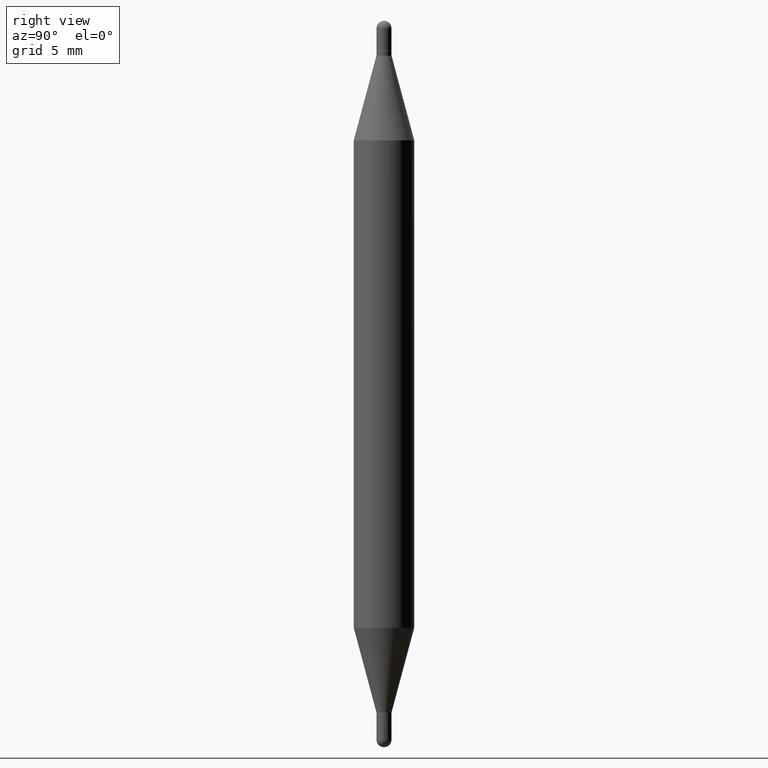
[diagram: clean part render]
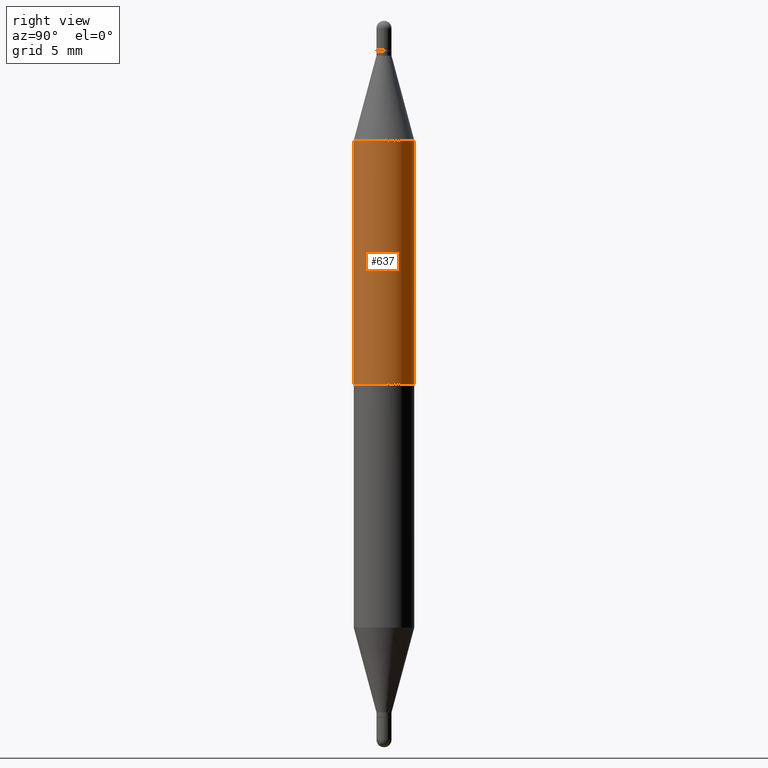
[diagram: same view with one face highlighted and labeled with its STEP entity id]
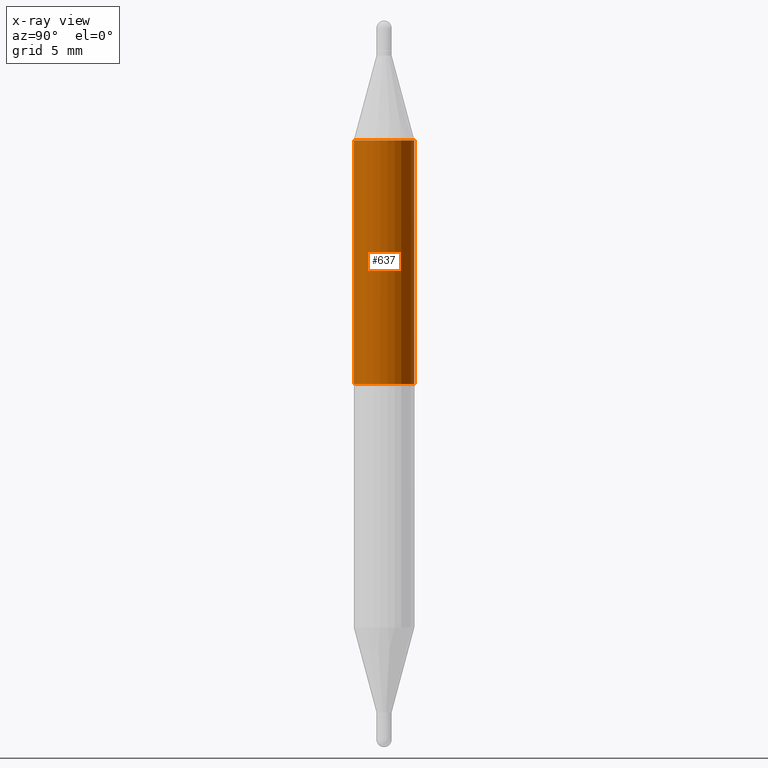
[diagram: x-ray of the same camera — body ghosted, the highlighted face saturated]
A machine part, right view. The second image highlights one B-rep face of the part: STEP entity #637.
The next image is the same camera in x-ray: the body ghosted, the highlighted face saturated — about 0% of this face is hidden behind the body in this view.
In plain terms, the highlighted cylindrical surface (edge-blend (fillet) strip) has radius 1.5875 mm, axis along (-0, -0, -1).
Its self-contained STEP definition (entity closure, byte-faithful):
#39 = DIRECTION ( 'NONE',  ( -2.448446106568060842E-29, -3.483878130583589894E-15, -1.000000000000000000 ) ) ;
#94 = CARTESIAN_POINT ( 'NONE',  ( -4.364351673553608545E-16, -0.06250000000000084655, -0.2470331828749792180 ) ) ;
#97 = EDGE_CURVE ( 'NONE', #601, #679, #764, .T. ) ;
#99 = VECTOR ( 'NONE', #39, 39.37007874015748143 ) ;
#113 = CYLINDRICAL_SURFACE ( 'NONE', #423, 0.06250000000000000000 ) ;
#198 = FACE_OUTER_BOUND ( 'NONE', #842, .T. ) ;
#247 = AXIS2_PLACEMENT_3D ( 'NONE', #388, #633, #481 ) ;
#290 = LINE ( 'NONE', #1048, #99 ) ;
#388 = CARTESIAN_POINT ( 'NONE',  ( 3.067821725048732845E-29, -8.631381618369439646E-16, -0.2470331828749794401 ) ) ;
#423 = AXIS2_PLACEMENT_3D ( 'NONE', #452, #797, #887 ) ;
#452 = CARTESIAN_POINT ( 'NONE',  ( 0.000000000000000000, -5.228321854365732350E-15, -1.500000000000000444 ) ) ;
#481 = DIRECTION ( 'NONE',  ( -6.982962677686265922E-15, -1.000000000000000000, 3.278217592397116257E-15 ) ) ;
#505 = VERTEX_POINT ( 'NONE', #94 ) ;
#548 = ORIENTED_EDGE ( 'NONE', *, *, #778, .F. ) ;
#554 = CARTESIAN_POINT ( 'NONE',  ( 4.287811248607512910E-16, 0.06249999999999911876, -0.2470331828749796621 ) ) ;
#564 = LINE ( 'NONE', #991, #1098 ) ;
#580 = EDGE_CURVE ( 'NONE', #862, #601, #564, .T. ) ;
#601 = VERTEX_POINT ( 'NONE', #634 ) ;
#633 = DIRECTION ( 'NONE',  ( 2.448446106568060842E-29, 3.483878130583589894E-15, 1.000000000000000000 ) ) ;
#634 = CARTESIAN_POINT ( 'NONE',  ( 4.287811248607452266E-16, 0.06249999999999738404, -0.7500000000000004441 ) ) ;
#637 = ADVANCED_FACE ( 'NONE', ( #198 ), #113, .T. ) ;
#639 = DIRECTION ( 'NONE',  ( -2.448446106568060842E-29, -3.483878130583589894E-15, -1.000000000000000000 ) ) ;
#678 = ORIENTED_EDGE ( 'NONE', *, *, #97, .F. ) ;
#679 = VERTEX_POINT ( 'NONE', #813 ) ;
#732 = CIRCLE ( 'NONE', #247, 0.06249999999999999306 ) ;
#764 = CIRCLE ( 'NONE', #967, 0.06250000000000000000 ) ;
#778 = EDGE_CURVE ( 'NONE', #505, #862, #732, .T. ) ;
#797 = DIRECTION ( 'NONE',  ( -2.448446106568060842E-29, -3.483878130583589894E-15, -1.000000000000000000 ) ) ;
#813 = CARTESIAN_POINT ( 'NONE',  ( -4.364351673553731805E-16, -0.06250000000000260902, -0.7499999999999998890 ) ) ;
#842 = EDGE_LOOP ( 'NONE', ( #1030, #548, #953, #678 ) ) ;
#862 = VERTEX_POINT ( 'NONE', #554 ) ;
#887 = DIRECTION ( 'NONE',  ( -6.982962677686265922E-15, -1.000000000000000000, 4.370956789862821150E-15 ) ) ;
#901 = DIRECTION ( 'NONE',  ( 0.000000000000000000, 1.000000000000000000, -4.370956789862821150E-15 ) ) ;
#906 = DIRECTION ( 'NONE',  ( -0.000000000000000000, -3.485547902910486918E-15, -1.000000000000000000 ) ) ;
#953 = ORIENTED_EDGE ( 'NONE', *, *, #965, .T. ) ;
#965 = EDGE_CURVE ( 'NONE', #505, #679, #290, .T. ) ;
#967 = AXIS2_PLACEMENT_3D ( 'NONE', #995, #906, #901 ) ;
#991 = CARTESIAN_POINT ( 'NONE',  ( 4.287811248607206733E-16, 0.06249999999999477501, -1.500000000000000666 ) ) ;
#995 = CARTESIAN_POINT ( 'NONE',  ( 1.836334579926045982E-29, -2.615413256428038450E-15, -0.7500000000000002220 ) ) ;
#1030 = ORIENTED_EDGE ( 'NONE', *, *, #580, .F. ) ;
#1048 = CARTESIAN_POINT ( 'NONE',  ( -4.364351673553916201E-16, -0.06250000000000521805, -1.500000000000000222 ) ) ;
#1098 = VECTOR ( 'NONE', #639, 39.37007874015748143 ) ;